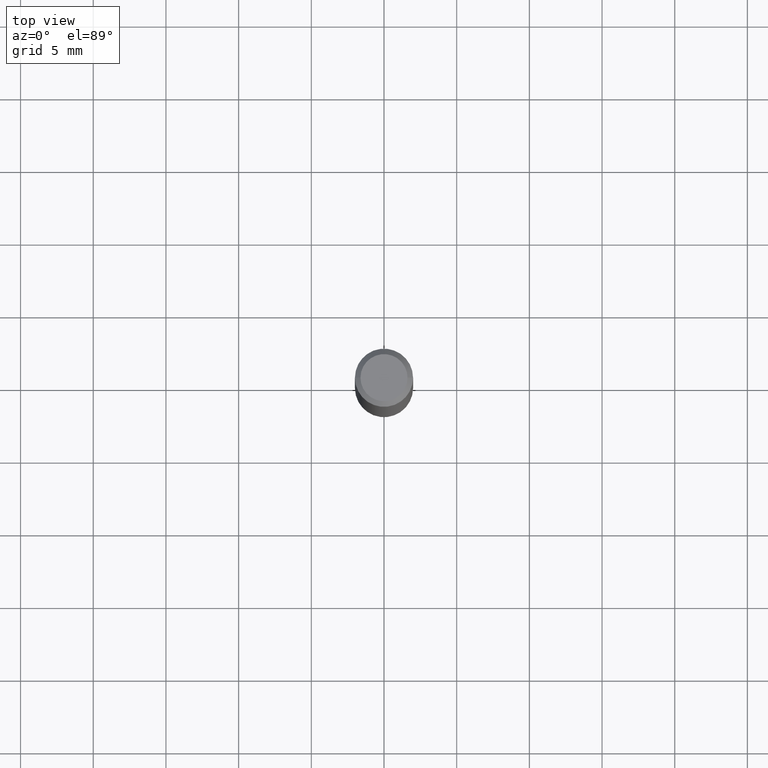
[diagram: clean part render]
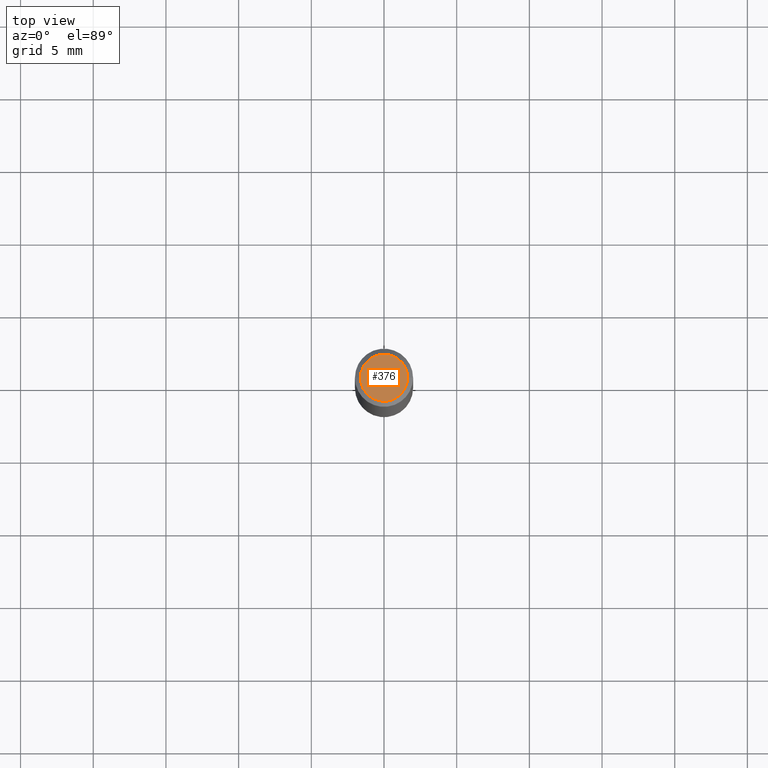
[diagram: same view with one face highlighted and labeled with its STEP entity id]
A machine part, top view. The second image highlights one B-rep face of the part: STEP entity #376.
In plain terms, the highlighted planar face has unit normal (0, -0, -1).
Its self-contained STEP definition (entity closure, byte-faithful):
#26 = ORIENTED_EDGE ( 'NONE', *, *, #430, .T. ) ;
#31 = DIRECTION ( 'NONE',  ( -2.445468806185136597E-29, 3.491481338843145583E-15, 1.000000000000000000 ) ) ;
#33 = CARTESIAN_POINT ( 'NONE',  ( -1.671175420108757483E-44, 2.385995592536438542E-30, 6.833762981895258137E-16 ) ) ;
#34 = CIRCLE ( 'NONE', #339, 0.06375000000000000111 ) ;
#84 = AXIS2_PLACEMENT_3D ( 'NONE', #33, #463, #139 ) ;
#101 = ORIENTED_EDGE ( 'NONE', *, *, #427, .T. ) ;
#113 = CARTESIAN_POINT ( 'NONE',  ( -0.06375000000000000111, 4.713499807438241074E-16, 6.833762981895226583E-16 ) ) ;
#137 = VERTEX_POINT ( 'NONE', #113 ) ;
#139 = DIRECTION ( 'NONE',  ( 1.000000000000000000, -6.982962677686265922E-15, 4.947888571036530338E-29 ) ) ;
#147 = DIRECTION ( 'NONE',  ( 1.000000000000000000, -6.982962677686265922E-15, 4.947888571036530338E-29 ) ) ;
#198 = CIRCLE ( 'NONE', #84, 0.06375000000000000111 ) ;
#283 = DIRECTION ( 'NONE',  ( 2.438088387897960049E-29, -3.491481338843145188E-15, -1.000000000000000000 ) ) ;
#298 = AXIS2_PLACEMENT_3D ( 'NONE', #456, #283, #423 ) ;
#336 = VERTEX_POINT ( 'NONE', #415 ) ;
#339 = AXIS2_PLACEMENT_3D ( 'NONE', #425, #31, #147 ) ;
#376 = ADVANCED_FACE ( 'NONE', ( #420 ), #417, .F. ) ;
#415 = CARTESIAN_POINT ( 'NONE',  ( 0.06375000000000000111, -5.149965923825440432E-16, 6.833762981895291664E-16 ) ) ;
#417 = PLANE ( 'NONE',  #298 ) ;
#420 = FACE_OUTER_BOUND ( 'NONE', #421, .T. ) ;
#421 = EDGE_LOOP ( 'NONE', ( #101, #26 ) ) ;
#423 = DIRECTION ( 'NONE',  ( -1.000000000000000000, 6.982962677686265922E-15, -4.876176775795935793E-29 ) ) ;
#425 = CARTESIAN_POINT ( 'NONE',  ( -1.671175420108757483E-44, 2.385995592536438542E-30, 6.833762981895258137E-16 ) ) ;
#427 = EDGE_CURVE ( 'NONE', #137, #336, #198, .T. ) ;
#430 = EDGE_CURVE ( 'NONE', #336, #137, #34, .T. ) ;
#456 = CARTESIAN_POINT ( 'NONE',  ( 4.451638707024993845E-16, 0.06375000000000000111, 1.191062137435123765E-16 ) ) ;
#463 = DIRECTION ( 'NONE',  ( -2.445468806185136597E-29, 3.491481338843145583E-15, 1.000000000000000000 ) ) ;